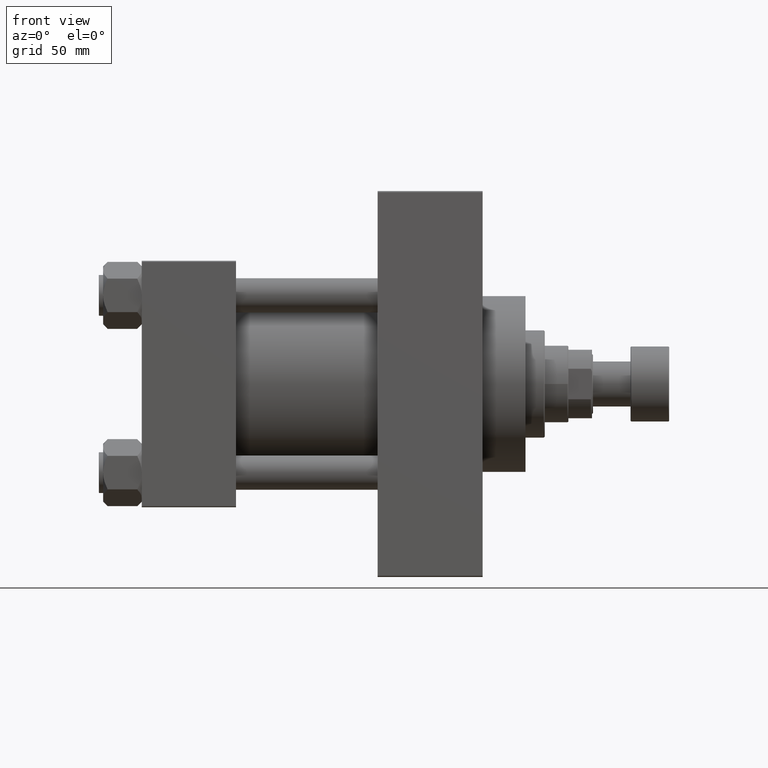
[diagram: clean part render]
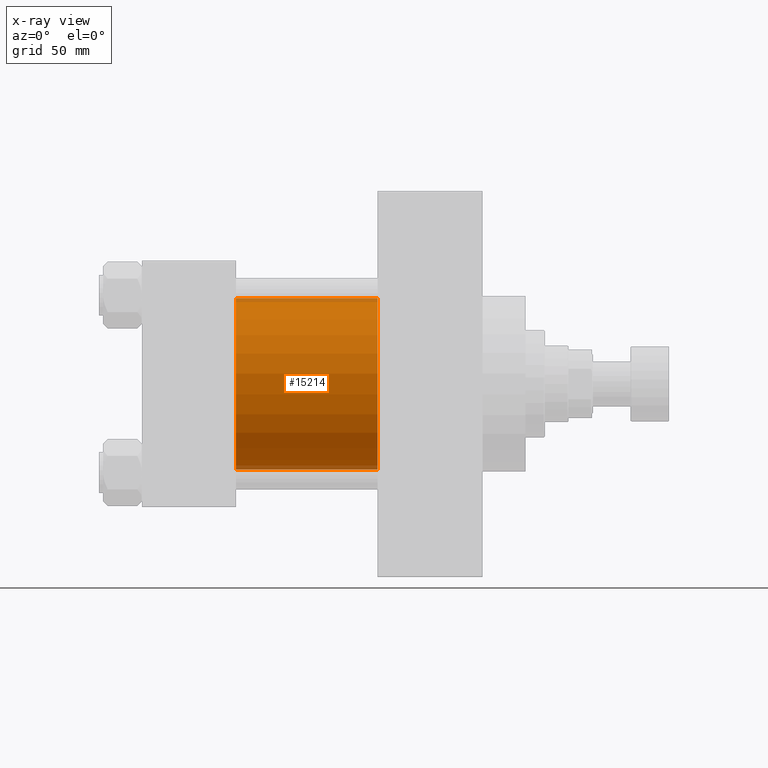
[diagram: x-ray — body ghosted, one internal face saturated and labeled with its STEP entity id]
A machine part, front view, then the same camera in x-ray: the body is ghosted and one INTERNAL B-rep face — a face not visible from any outside direction — is saturated and labeled: STEP entity #15214.
In plain terms, the highlighted cylindrical surface (partial cylindrical patch) has radius 40 mm, axis along (-1, -0, -0).
Its self-contained STEP definition (entity closure, byte-faithful):
#2116 = CARTESIAN_POINT ( 'NONE',  ( 44.00000000000000000, -2.602085213965210642E-15, 40.00000000000000000 ) ) ;
#2190 = DIRECTION ( 'NONE',  ( -1.000000000000000000, -0.000000000000000000, -0.000000000000000000 ) ) ;
#3928 = CARTESIAN_POINT ( 'NONE',  ( 110.0000000000000000, -2.602085213965210642E-15, 0.000000000000000000 ) ) ;
#4805 = AXIS2_PLACEMENT_3D ( 'NONE', #3928, #40707, #8810 ) ;
#5932 = ORIENTED_EDGE ( 'NONE', *, *, #25134, .F. ) ;
#7553 = DIRECTION ( 'NONE',  ( 0.000000000000000000, 0.000000000000000000, -1.000000000000000000 ) ) ;
#7750 = CARTESIAN_POINT ( 'NONE',  ( 110.0000000000000000, 2.296501982624201990E-15, -40.00000000000000000 ) ) ;
#8810 = DIRECTION ( 'NONE',  ( 0.000000000000000000, 0.000000000000000000, -1.000000000000000000 ) ) ;
#9888 = LINE ( 'NONE', #17882, #31625 ) ;
#9943 = FACE_OUTER_BOUND ( 'NONE', #47146, .T. ) ;
#11928 = VERTEX_POINT ( 'NONE', #13728 ) ;
#13595 = DIRECTION ( 'NONE',  ( -1.000000000000000000, -0.000000000000000000, -0.000000000000000000 ) ) ;
#13728 = CARTESIAN_POINT ( 'NONE',  ( 110.0000000000000000, -2.602085213965210642E-15, 40.00000000000000000 ) ) ;
#15214 = ADVANCED_FACE ( 'NONE', ( #9943 ), #24309, .F. ) ;
#15723 = EDGE_CURVE ( 'NONE', #17330, #41976, #9888, .T. ) ;
#16816 = AXIS2_PLACEMENT_3D ( 'NONE', #17229, #13595, #34787 ) ;
#17229 = CARTESIAN_POINT ( 'NONE',  ( 110.0000000000000000, -2.602085213965210642E-15, 0.000000000000000000 ) ) ;
#17330 = VERTEX_POINT ( 'NONE', #7750 ) ;
#17882 = CARTESIAN_POINT ( 'NONE',  ( 110.0000000000000000, 2.296501982624201990E-15, -40.00000000000000000 ) ) ;
#24309 = CYLINDRICAL_SURFACE ( 'NONE', #16816, 40.00000000000000000 ) ;
#24982 = ORIENTED_EDGE ( 'NONE', *, *, #15723, .T. ) ;
#25134 = EDGE_CURVE ( 'NONE', #30346, #41976, #31785, .T. ) ;
#28472 = LINE ( 'NONE', #35528, #39010 ) ;
#30155 = CARTESIAN_POINT ( 'NONE',  ( 44.00000000000000000, 2.296501982624201990E-15, -40.00000000000000000 ) ) ;
#30346 = VERTEX_POINT ( 'NONE', #2116 ) ;
#31625 = VECTOR ( 'NONE', #32743, 1000.000000000000000 ) ;
#31785 = CIRCLE ( 'NONE', #46563, 40.00000000000000000 ) ;
#32743 = DIRECTION ( 'NONE',  ( -1.000000000000000000, -0.000000000000000000, -0.000000000000000000 ) ) ;
#34341 = CIRCLE ( 'NONE', #4805, 40.00000000000000000 ) ;
#34787 = DIRECTION ( 'NONE',  ( 0.000000000000000000, 0.000000000000000000, 1.000000000000000000 ) ) ;
#35528 = CARTESIAN_POINT ( 'NONE',  ( 110.0000000000000000, -2.602085213965210642E-15, 40.00000000000000000 ) ) ;
#38447 = ORIENTED_EDGE ( 'NONE', *, *, #47668, .T. ) ;
#39010 = VECTOR ( 'NONE', #2190, 1000.000000000000000 ) ;
#40707 = DIRECTION ( 'NONE',  ( 1.000000000000000000, 0.000000000000000000, 0.000000000000000000 ) ) ;
#40905 = CARTESIAN_POINT ( 'NONE',  ( 44.00000000000000000, -2.602085213965210642E-15, 0.000000000000000000 ) ) ;
#41976 = VERTEX_POINT ( 'NONE', #30155 ) ;
#42251 = ORIENTED_EDGE ( 'NONE', *, *, #47852, .F. ) ;
#44799 = DIRECTION ( 'NONE',  ( 1.000000000000000000, 0.000000000000000000, 0.000000000000000000 ) ) ;
#46563 = AXIS2_PLACEMENT_3D ( 'NONE', #40905, #44799, #7553 ) ;
#47146 = EDGE_LOOP ( 'NONE', ( #38447, #24982, #5932, #42251 ) ) ;
#47668 = EDGE_CURVE ( 'NONE', #11928, #17330, #34341, .T. ) ;
#47852 = EDGE_CURVE ( 'NONE', #11928, #30346, #28472, .T. ) ;